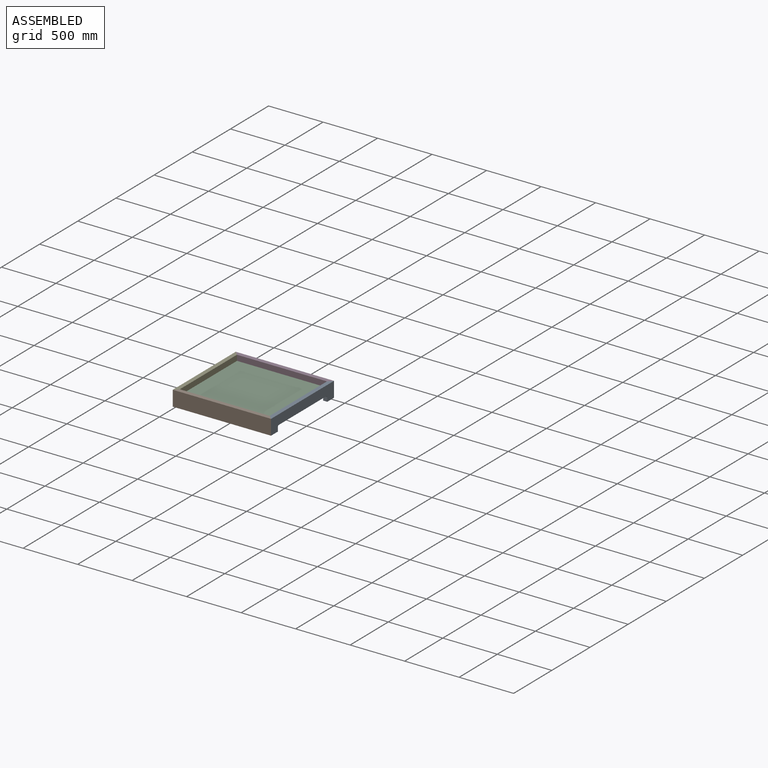
[diagram: assembled view]
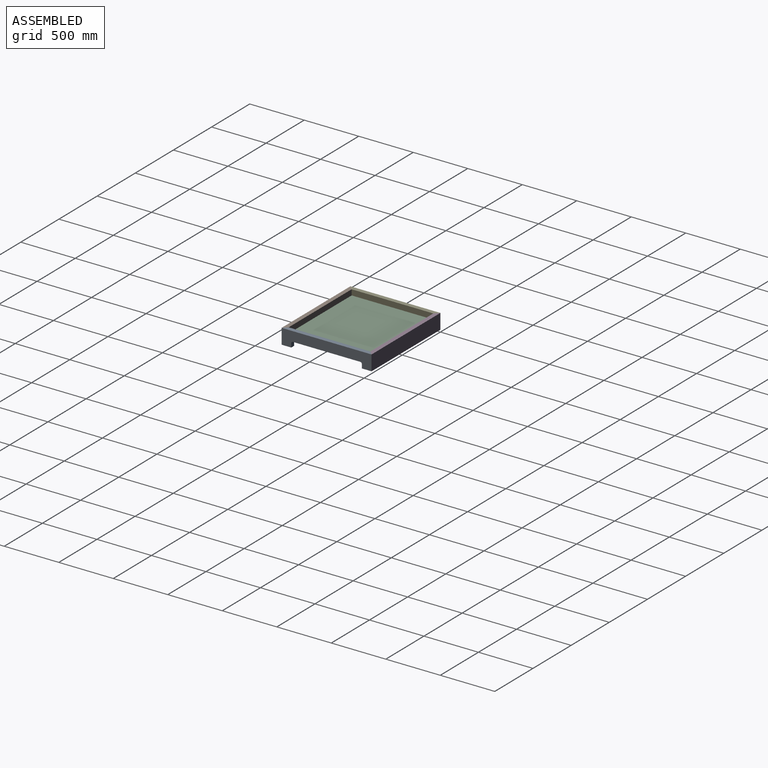
[diagram: assembled view, second angle]
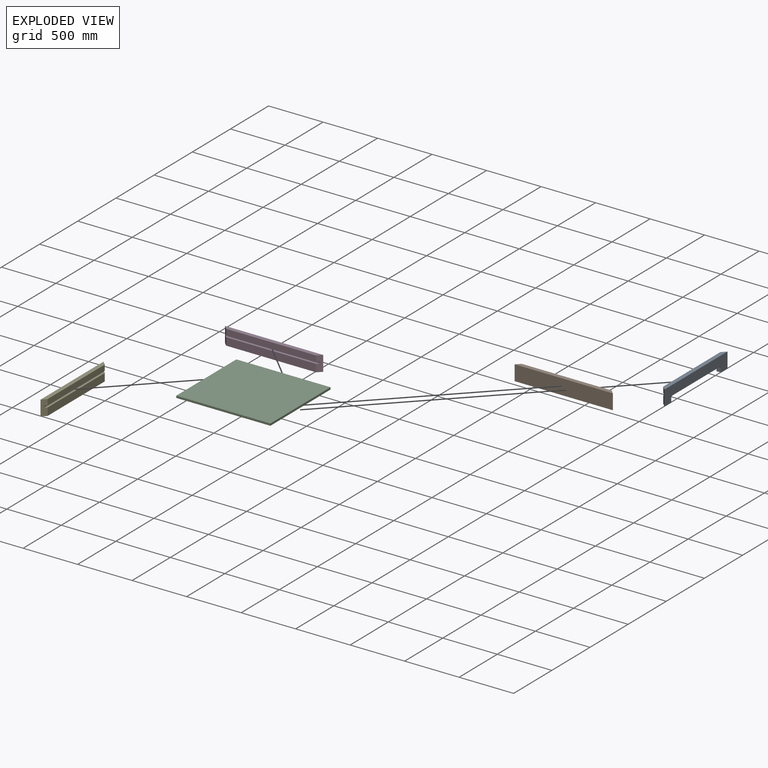
[diagram: exploded view]
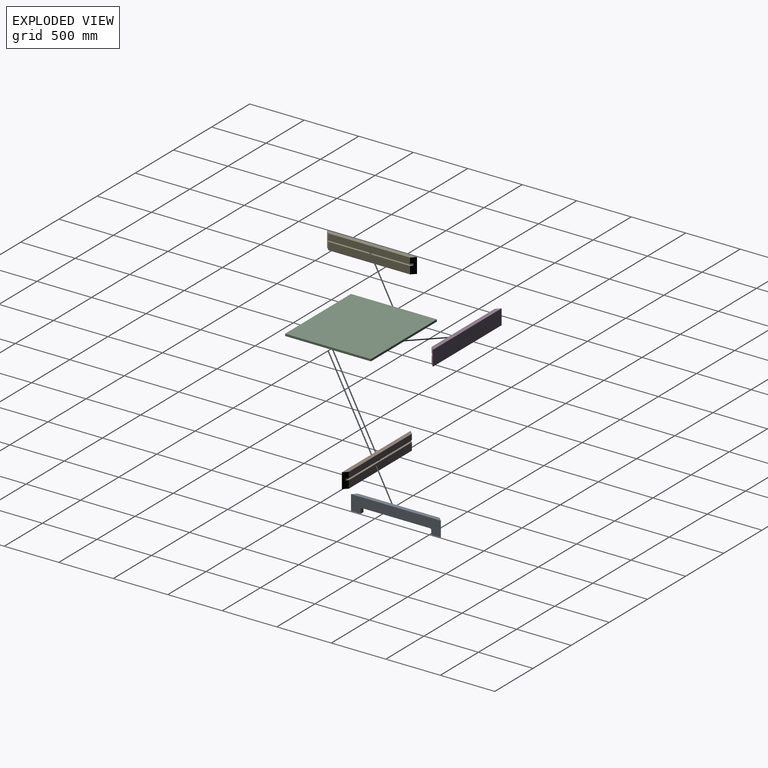
[diagram: exploded view, second angle]
ASSEMBLY  parts=5 mates=4
PART A: 16 faces, bbox 38.1x825.5x139.7 mm
  f0: plane 88.9x38.1mm, normal (0,0,-1), area 2661.3mm2, adj f1,f3,f9,f12
  f1: plane 749.3x69.85mm, normal (-1,0,0), area 19523.1mm2, adj f0,f2,f8,f9,f10,f11,f12,f13
  f2: plane 88.9x38.1mm, normal (0,0,-1), area 2661.3mm2, adj f1,f3,f10,f11
  f3: plane 825.5x139.7mm, normal (1,0,0), area 82506.8mm2, adj f0,f2,f4,f9,f10,f11,f12,f13
  f4: plane 825.5x38.1mm, normal (0,0,1), area 29999.9mm2, adj f3,f5,f9,f10
  f5: plane 749.3x50.8mm, normal (-1,0,0), area 38064.4mm2, adj f4,f6,f9,f10
  f6: plane 787.4x19.05mm, normal (0,0,-1), area 14637.1mm2, adj f5,f7,f9,f10
  f7: plane 787.4x19.05mm, normal (-1,0,0), area 15000mm2, adj f6,f8,f9,f10
  f8: plane 787.4x19.05mm, normal (0,0,1), area 14637.1mm2, adj f1,f7,f9,f10
  f9: plane 139.7x38.1mm, normal (-0.71,0.71,0), area 7014mm2, adj f0,f1,f3,f4,f5,f6,f7,f8
  f10: plane 139.7x38.1mm, normal (-0.71,-0.71,0), area 7014mm2, adj f1,f2,f3,f4,f5,f6,f7,f8
  f11: plane 38.1x36.51mm, normal (0,1,0), area 1391.1mm2, adj f1,f2,f3,f15
  f12: plane 38.1x36.51mm, normal (0,-1,0), area 1391.1mm2, adj f0,f1,f3,f13
  f13: cylinder r=14.29mm len=38.1mm, axis (1,0,0), area 855.1mm2, adj f1,f3,f12,f14
  f14: plane 619.13x38.1mm, normal (0,0,-1), area 23588.7mm2, adj f1,f3,f13,f15
  f15: cylinder r=14.29mm len=38.1mm, axis (1,0,0), area 855.1mm2, adj f1,f3,f11,f14
PART B: 10 faces, bbox 901.7x38.1x139.7 mm
  f0: plane 863.6x19.05mm, normal (0,-1,0), area 16451.6mm2, adj f1,f7,f8,f9
  f1: plane 863.6x19.05mm, normal (0,0,1), area 16088.7mm2, adj f0,f2,f8,f9
  f2: plane 825.5x69.85mm, normal (0,-1,0), area 57661.2mm2, adj f1,f3,f8,f9
  f3: plane 901.7x38.1mm, normal (0,0,-1), area 32903.2mm2, adj f2,f4,f8,f9
  f4: plane 901.7x139.7mm, normal (0,1,0), area 125967.5mm2, adj f3,f5,f8,f9
  f5: plane 901.7x38.1mm, normal (0,0,1), area 32903.2mm2, adj f4,f6,f8,f9
  f6: plane 825.5x50.8mm, normal (0,-1,0), area 41935.4mm2, adj f5,f7,f8,f9
  f7: plane 863.6x19.05mm, normal (0,0,-1), area 16088.7mm2, adj f0,f6,f8,f9
  f8: plane 139.7x38.1mm, normal (0.71,-0.71,0), area 7014mm2, adj f0,f1,f2,f3,f4,f5,f6,f7
  f9: plane 139.7x38.1mm, normal (-0.71,-0.71,0), area 7014mm2, adj f0,f1,f2,f3,f4,f5,f6,f7
PART C: 6 faces, bbox 863.6x787.4x19.1 mm
  f0: plane 863.6x19.05mm, normal (0,1,0), area 16451.6mm2, adj f1,f3,f4,f5
  f1: plane 787.4x19.05mm, normal (-1,0,0), area 15000mm2, adj f0,f2,f4,f5
  f2: plane 863.6x19.05mm, normal (0,-1,0), area 16451.6mm2, adj f1,f3,f4,f5
  f3: plane 787.4x19.05mm, normal (1,0,0), area 15000mm2, adj f0,f2,f4,f5
  f4: plane 863.6x787.4mm, normal (0,0,1), area 679998.6mm2, adj f0,f1,f2,f3
  f5: plane 863.6x787.4mm, normal (0,0,-1), area 679998.6mm2, adj f0,f1,f2,f3
PART D: 10 faces, bbox 901.7x38.1x139.7 mm
  f0: plane 825.5x69.85mm, normal (0,-1,0), area 57661.2mm2, adj f1,f7,f8,f9
  f1: plane 901.7x38.1mm, normal (0,0,-1), area 32903.2mm2, adj f0,f2,f8,f9
  f2: plane 901.7x139.7mm, normal (0,1,0), area 125967.5mm2, adj f1,f3,f8,f9
  f3: plane 901.7x38.1mm, normal (0,0,1), area 32903.2mm2, adj f2,f4,f8,f9
  f4: plane 825.5x50.8mm, normal (0,-1,0), area 41935.4mm2, adj f3,f5,f8,f9
  f5: plane 868.05x21.28mm, normal (0,0,-1), area 18017.1mm2, adj f4,f6,f8,f9
  f6: plane 868.05x19.05mm, normal (0,-1,0), area 16536.4mm2, adj f5,f7,f8,f9
  f7: plane 868.05x21.28mm, normal (0,0,1), area 18017.1mm2, adj f0,f6,f8,f9
  f8: plane 139.7x38.1mm, normal (0.71,-0.71,0), area 6954mm2, adj f0,f1,f2,f3,f4,f5,f6,f7
  f9: plane 139.7x38.1mm, normal (-0.71,-0.71,0), area 6954mm2, adj f0,f1,f2,f3,f4,f5,f6,f7
PART E: 10 faces, bbox 38.1x825.5x139.7 mm
  f0: plane 825.5x139.7mm, normal (-1,0,0), area 115322.3mm2, adj f1,f7,f8,f9
  f1: plane 825.5x38.1mm, normal (0,0,-1), area 29999.9mm2, adj f0,f2,f8,f9
  f2: plane 749.3x69.85mm, normal (1,0,0), area 52338.6mm2, adj f1,f3,f8,f9
  f3: plane 787.4x19.05mm, normal (0,0,1), area 14637.1mm2, adj f2,f4,f8,f9
  f4: plane 787.4x19.05mm, normal (1,0,0), area 15000mm2, adj f3,f5,f8,f9
  f5: plane 787.4x19.05mm, normal (0,0,-1), area 14637.1mm2, adj f4,f6,f8,f9
  f6: plane 749.3x50.8mm, normal (1,0,0), area 38064.4mm2, adj f5,f7,f8,f9
  f7: plane 825.5x38.1mm, normal (0,0,1), area 29999.9mm2, adj f0,f6,f8,f9
  f8: plane 139.7x38.1mm, normal (0.71,0.71,0), area 7014mm2, adj f0,f1,f2,f3,f4,f5,f6,f7
  f9: plane 139.7x38.1mm, normal (0.71,-0.71,0), area 7014mm2, adj f0,f1,f2,f3,f4,f5,f6,f7
PLACE A t=(901.7,0,0)mm
PLACE B rot(axis=(0,0,1),180deg) t=(0,-787.4,0)mm
PLACE C rot(axis=(1,0,0),180deg) t=(19.05,-806.45,88.9)mm
PLACE D t=(901.7,-38.1,0)mm
PLACE E at identity fixed
MATE planar C.f1 <-> E.f4  axis (-1,0,0) through (19.05,-412.75,69.85)mm
MATE planar D.f8 <-> A.f9  axis (0.71,-0.71,0) through (882.65,-19.05,139.7)mm
MATE planar A.f10 <-> B.f9  axis (-0.71,-0.71,0) through (882.65,-806.45,139.7)mm
MATE planar E.f8 <-> D.f9  axis (0.71,0.71,0) through (19.05,-19.05,139.7)mm
